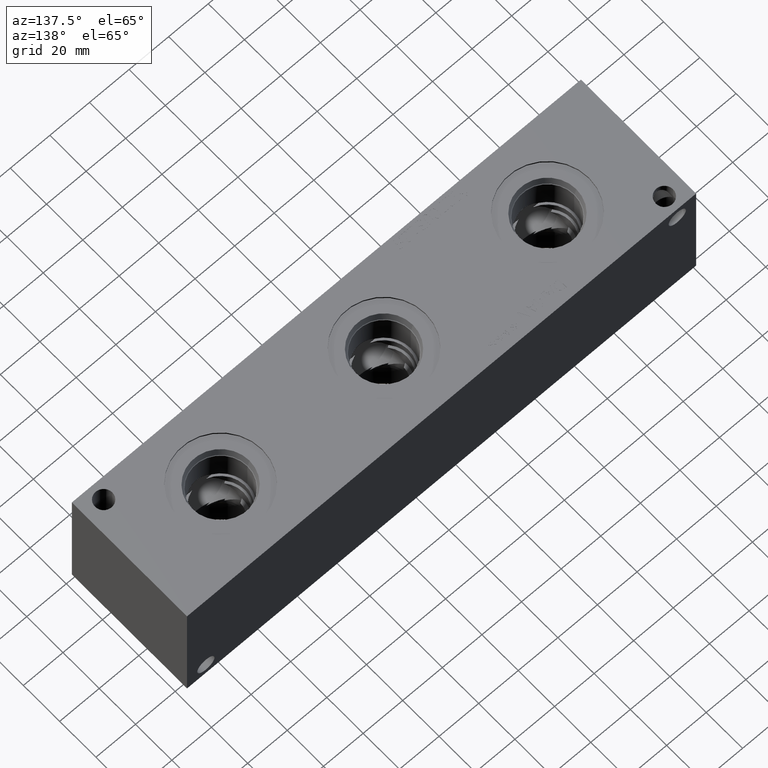
[diagram: clean part render]
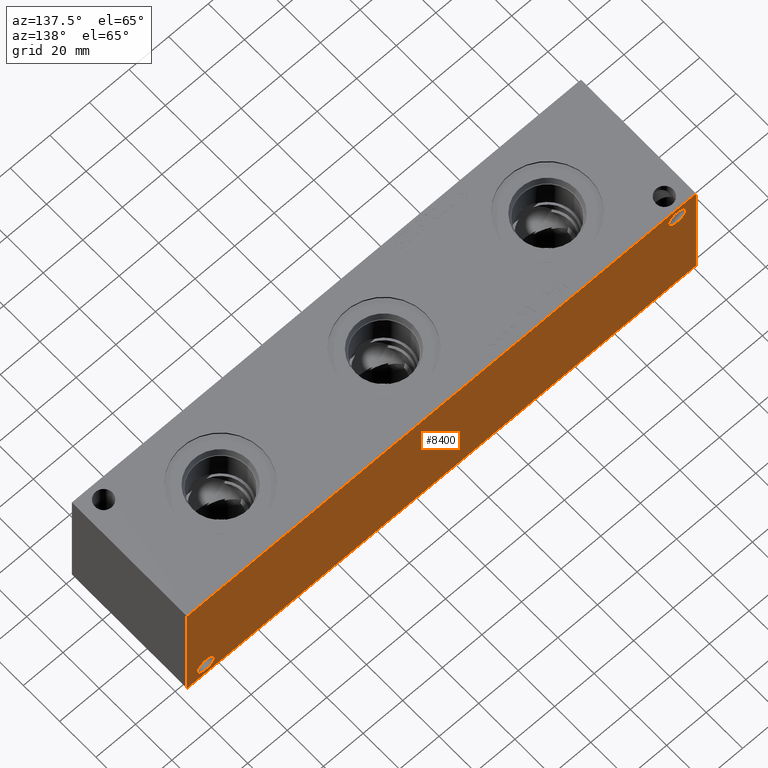
[diagram: same view with one face highlighted and labeled with its STEP entity id]
A machine part, auxiliary view. The second image highlights one B-rep face of the part: STEP entity #8400.
In plain terms, the highlighted planar face has unit normal (0, 1, 0).
Its self-contained STEP definition (entity closure, byte-faithful):
#292=CIRCLE('',#8893,4.3688);
#295=CIRCLE('',#8902,4.3688);
#373=FACE_BOUND('',#1607,.T.);
#374=FACE_BOUND('',#1608,.T.);
#1132=FACE_OUTER_BOUND('',#1606,.T.);
#1606=EDGE_LOOP('',(#7386,#7387,#7388,#7389));
#1607=EDGE_LOOP('',(#7390));
#1608=EDGE_LOOP('',(#7391));
#1910=LINE('',#12912,#2651);
#2358=LINE('',#14577,#3099);
#2359=LINE('',#14580,#3100);
#2360=LINE('',#14581,#3101);
#2651=VECTOR('',#9423,10.);
#3099=VECTOR('',#10829,10.);
#3100=VECTOR('',#10832,10.);
#3101=VECTOR('',#10833,10.);
#3413=VERTEX_POINT('',#12909);
#3414=VERTEX_POINT('',#12911);
#3838=VERTEX_POINT('',#14411);
#3843=VERTEX_POINT('',#14427);
#3875=VERTEX_POINT('',#14573);
#3877=VERTEX_POINT('',#14579);
#4340=EDGE_CURVE('',#3413,#3414,#1910,.T.);
#4982=EDGE_CURVE('',#3838,#3838,#292,.T.);
#4991=EDGE_CURVE('',#3843,#3843,#295,.T.);
#5055=EDGE_CURVE('',#3875,#3414,#2358,.T.);
#5056=EDGE_CURVE('',#3877,#3875,#2359,.T.);
#5057=EDGE_CURVE('',#3877,#3413,#2360,.T.);
#7386=ORIENTED_EDGE('',*,*,#5056,.T.);
#7387=ORIENTED_EDGE('',*,*,#5055,.T.);
#7388=ORIENTED_EDGE('',*,*,#4340,.F.);
#7389=ORIENTED_EDGE('',*,*,#5057,.F.);
#7390=ORIENTED_EDGE('',*,*,#4982,.T.);
#7391=ORIENTED_EDGE('',*,*,#4991,.T.);
#7660=PLANE('',#8975);
#8400=ADVANCED_FACE('',(#1132,#373,#374),#7660,.T.);
#8893=AXIS2_PLACEMENT_3D('',#14413,#10643,#10644);
#8902=AXIS2_PLACEMENT_3D('',#14429,#10663,#10664);
#8975=AXIS2_PLACEMENT_3D('',#14578,#10830,#10831);
#9423=DIRECTION('',(-1.,0.,0.));
#10643=DIRECTION('center_axis',(0.,-1.,0.));
#10644=DIRECTION('ref_axis',(1.,0.,0.));
#10663=DIRECTION('center_axis',(0.,-1.,0.));
#10664=DIRECTION('ref_axis',(1.,0.,0.));
#10829=DIRECTION('',(0.,0.,1.));
#10830=DIRECTION('center_axis',(0.,1.,0.));
#10831=DIRECTION('ref_axis',(-1.,0.,0.));
#10832=DIRECTION('',(-1.,0.,0.));
#10833=DIRECTION('',(0.,0.,1.));
#12909=CARTESIAN_POINT('',(257.175,63.5,63.5));
#12911=CARTESIAN_POINT('',(0.,63.5,63.5));
#12912=CARTESIAN_POINT('',(257.175,63.5,63.5));
#14411=CARTESIAN_POINT('',(5.1562,63.5,56.3626));
#14413=CARTESIAN_POINT('Origin',(9.525,63.5,56.3626));
#14427=CARTESIAN_POINT('',(243.2812,63.5,7.1374));
#14429=CARTESIAN_POINT('Origin',(247.65,63.5,7.1374));
#14573=CARTESIAN_POINT('',(0.,63.5,0.));
#14577=CARTESIAN_POINT('',(0.,63.5,0.));
#14578=CARTESIAN_POINT('Origin',(257.175,63.5,0.));
#14579=CARTESIAN_POINT('',(257.175,63.5,0.));
#14580=CARTESIAN_POINT('',(257.175,63.5,0.));
#14581=CARTESIAN_POINT('',(257.175,63.5,0.));